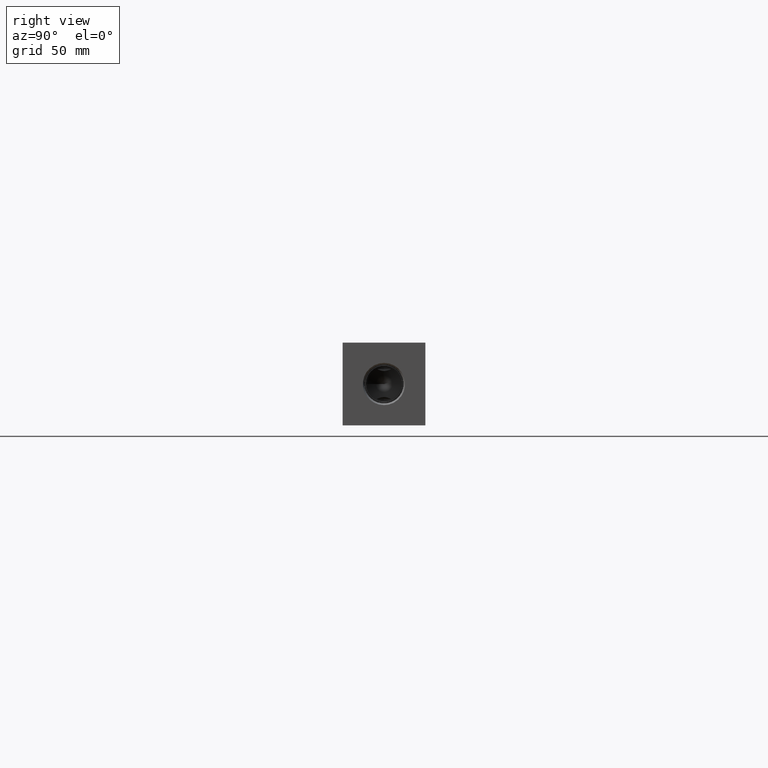
[diagram: clean part render]
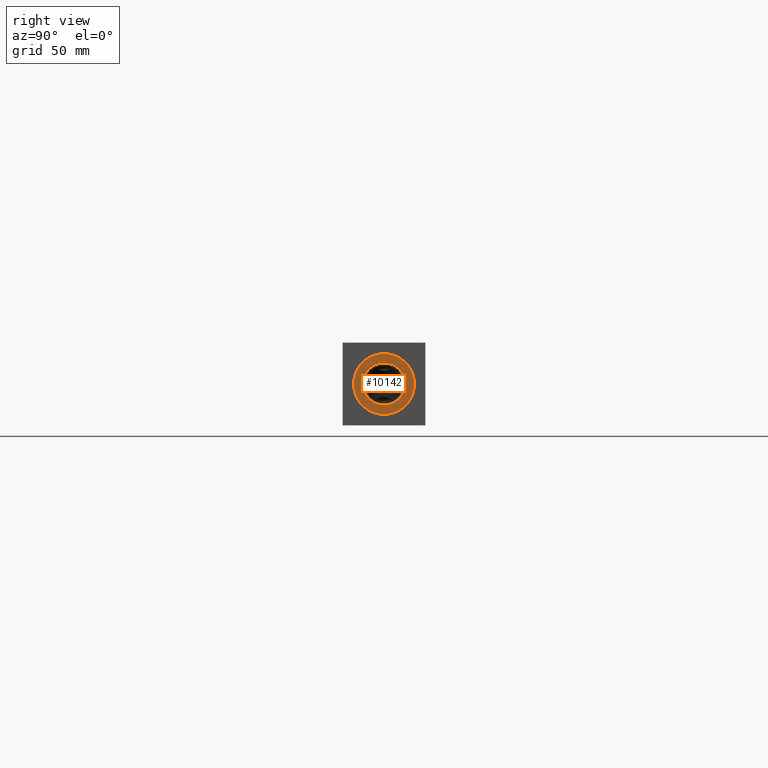
[diagram: same view with one face highlighted and labeled with its STEP entity id]
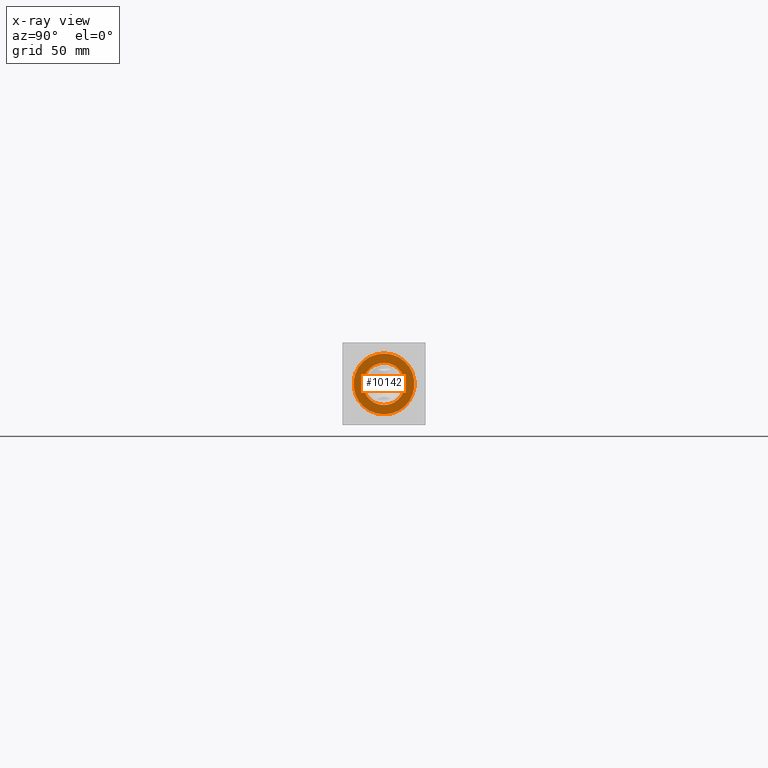
[diagram: x-ray of the same camera — body ghosted, the highlighted face saturated]
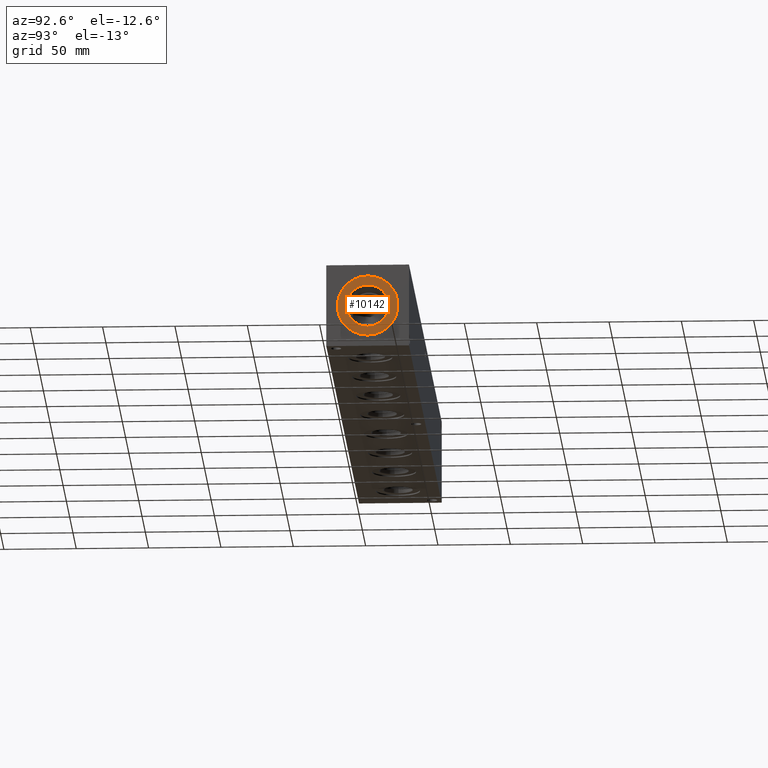
[diagram: same view with one face highlighted and labeled with its STEP entity id]
A machine part, right view. The second image highlights one B-rep face of the part: STEP entity #10142.
The next image is the same camera in x-ray: the body ghosted, the highlighted face saturated — about 0% of this face is hidden behind the body in this view.
A second angle (auxiliary view) of the same face is appended — the face is thin or edge-on in the first view.
In plain terms, the highlighted planar face has unit normal (-1, 0, 0).
Its self-contained STEP definition (entity closure, byte-faithful):
#516=CIRCLE('',#10904,21.0185);
#517=CIRCLE('',#10905,21.0185);
#518=CIRCLE('',#10907,14.5923);
#519=CIRCLE('',#10908,14.5923);
#617=FACE_BOUND('',#2001,.T.);
#876=PLANE('',#10906);
#1395=FACE_OUTER_BOUND('',#2000,.T.);
#2000=EDGE_LOOP('',(#9069,#9070));
#2001=EDGE_LOOP('',(#9071,#9072));
#4874=VERTEX_POINT('',#17809);
#4875=VERTEX_POINT('',#17811);
#4876=VERTEX_POINT('',#17815);
#4877=VERTEX_POINT('',#17816);
#6292=EDGE_CURVE('',#4874,#4875,#516,.T.);
#6293=EDGE_CURVE('',#4875,#4874,#517,.T.);
#6294=EDGE_CURVE('',#4876,#4877,#518,.T.);
#6295=EDGE_CURVE('',#4877,#4876,#519,.T.);
#9069=ORIENTED_EDGE('',*,*,#6293,.F.);
#9070=ORIENTED_EDGE('',*,*,#6292,.F.);
#9071=ORIENTED_EDGE('',*,*,#6294,.T.);
#9072=ORIENTED_EDGE('',*,*,#6295,.T.);
#10142=ADVANCED_FACE('',(#1395,#617),#876,.F.);
#10904=AXIS2_PLACEMENT_3D('',#17812,#13204,#13205);
#10905=AXIS2_PLACEMENT_3D('',#17813,#13206,#13207);
#10906=AXIS2_PLACEMENT_3D('',#17814,#13208,#13209);
#10907=AXIS2_PLACEMENT_3D('',#17817,#13210,#13211);
#10908=AXIS2_PLACEMENT_3D('',#17818,#13212,#13213);
#13204=DIRECTION('center_axis',(-1.,0.,0.));
#13205=DIRECTION('ref_axis',(0.,0.,1.));
#13206=DIRECTION('center_axis',(-1.,0.,0.));
#13207=DIRECTION('ref_axis',(0.,0.,1.));
#13208=DIRECTION('center_axis',(-1.,0.,0.));
#13209=DIRECTION('ref_axis',(0.,0.,1.));
#13210=DIRECTION('center_axis',(-1.,0.,0.));
#13211=DIRECTION('ref_axis',(0.,0.,1.));
#13212=DIRECTION('center_axis',(-1.,0.,0.));
#13213=DIRECTION('ref_axis',(0.,0.,1.));
#17809=CARTESIAN_POINT('',(497.6876,28.575,49.5935));
#17811=CARTESIAN_POINT('',(497.6876,28.575,7.5565));
#17812=CARTESIAN_POINT('Origin',(497.6876,28.575,28.575));
#17813=CARTESIAN_POINT('Origin',(497.6876,28.575,28.575));
#17814=CARTESIAN_POINT('Origin',(497.6876,28.575,13.9827));
#17815=CARTESIAN_POINT('',(497.6876,28.575,13.9827));
#17816=CARTESIAN_POINT('',(497.6876,28.575,43.1673));
#17817=CARTESIAN_POINT('Origin',(497.6876,28.575,28.575));
#17818=CARTESIAN_POINT('Origin',(497.6876,28.575,28.575));